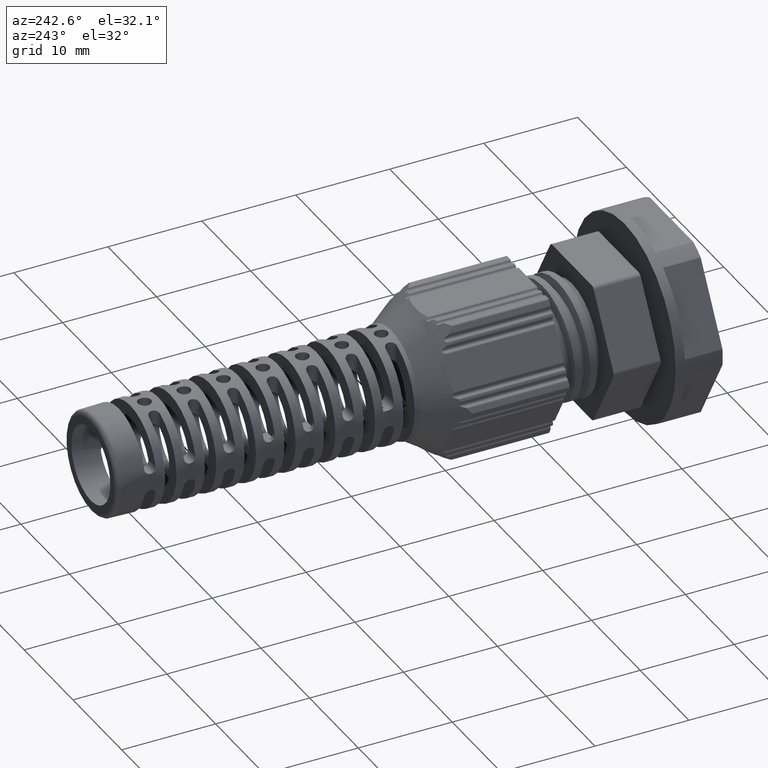
[diagram: clean part render]
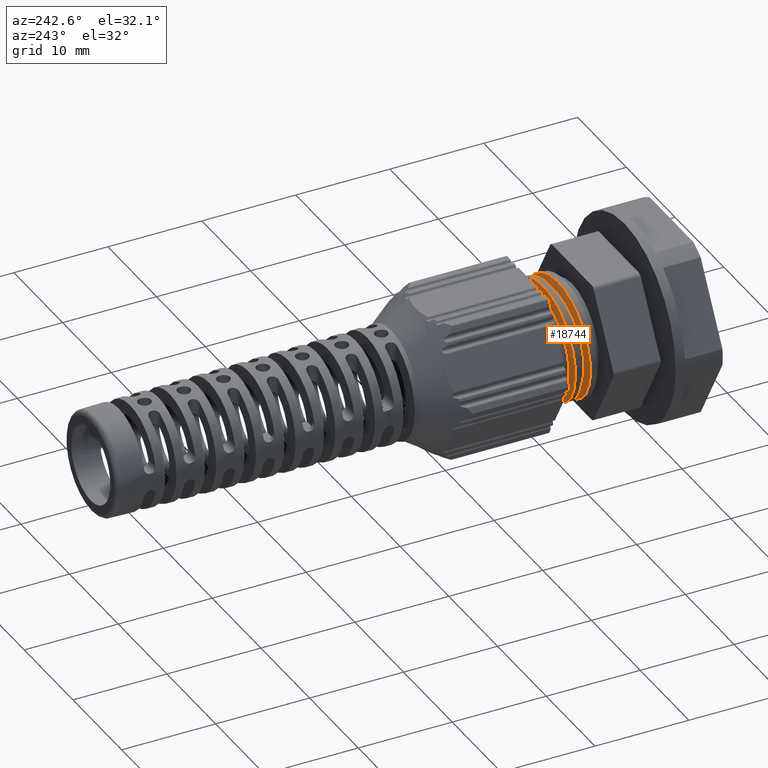
[diagram: same view with one face highlighted and labeled with its STEP entity id]
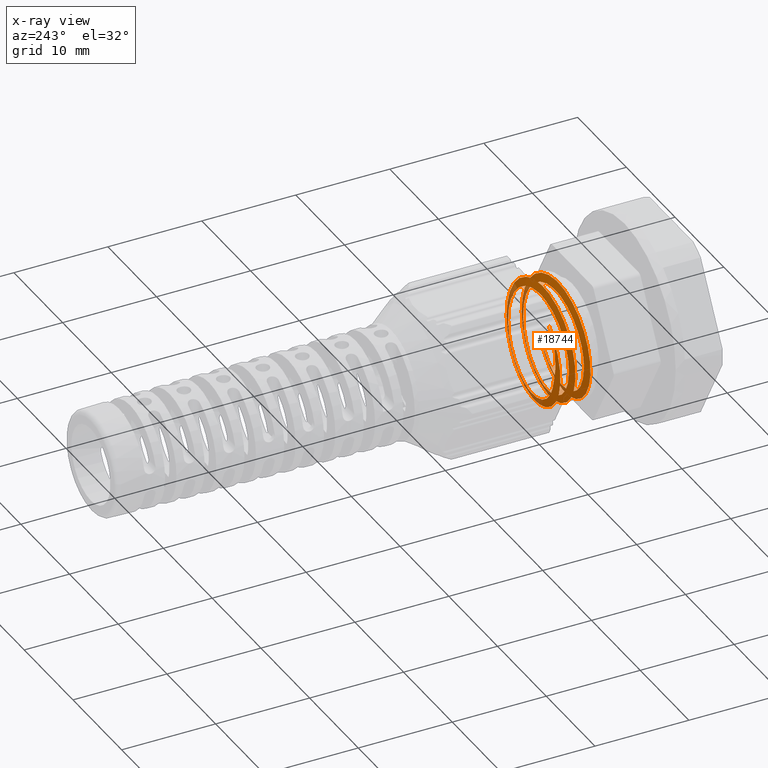
[diagram: x-ray of the same camera — body ghosted, the highlighted face saturated]
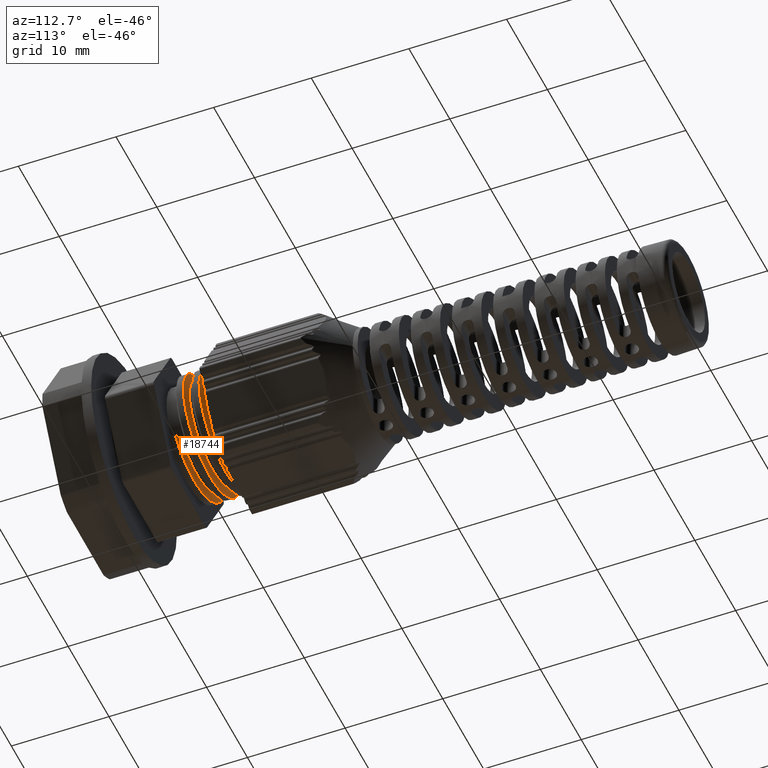
[diagram: same view with one face highlighted and labeled with its STEP entity id]
A machine part, auxiliary view. The second image highlights one B-rep face of the part: STEP entity #18744.
The next image is the same camera in x-ray: the body ghosted, the highlighted face saturated — about 16% of this face is hidden behind the body in this view.
A second angle (auxiliary view) of the same face is appended — the face is thin or edge-on in the first view.
In plain terms, the highlighted face is a freeform B-spline surface patch.
Its self-contained STEP definition (entity closure, byte-faithful):
#1087 = VERTEX_POINT ( 'NONE', #8345 ) ;
#1175 = VERTEX_POINT ( 'NONE', #8389 ) ;
#1208 = VERTEX_POINT ( 'NONE', #8470 ) ;
#2278 = EDGE_LOOP ( 'NONE', ( #3800, #2853, #3793, #3811, #3824, #3827, #3840, #3813, #3806 ) ) ;
#2853 = ORIENTED_EDGE ( 'NONE', *, *, #18505, .F. ) ;
#3793 = ORIENTED_EDGE ( 'NONE', *, *, #18596, .F. ) ;
#3800 = ORIENTED_EDGE ( 'NONE', *, *, #17540, .F. ) ;
#3806 = ORIENTED_EDGE ( 'NONE', *, *, #17566, .F. ) ;
#3811 = ORIENTED_EDGE ( 'NONE', *, *, #18636, .T. ) ;
#3813 = ORIENTED_EDGE ( 'NONE', *, *, #17570, .F. ) ;
#3824 = ORIENTED_EDGE ( 'NONE', *, *, #18583, .F. ) ;
#3827 = ORIENTED_EDGE ( 'NONE', *, *, #17545, .F. ) ;
#3840 = ORIENTED_EDGE ( 'NONE', *, *, #17569, .F. ) ;
#8345 = CARTESIAN_POINT ( 'NONE',  ( 4.953731957466974500, -2.805087850242340900, -3.853731957467014800 ) ) ;
#8389 = CARTESIAN_POINT ( 'NONE',  ( -4.298961618833343900, 1.233406263480285400, 4.572705906378621100 ) ) ;
#8470 = CARTESIAN_POINT ( 'NONE',  ( -5.313255970833022700, 1.233406263480260300, -1.213182174454109800 ) ) ;
#10132 = CARTESIAN_POINT ( 'NONE',  ( 3.853731957466394900, -2.510343738567963900, -3.853731957466975300 ) ) ;
#10137 = CARTESIAN_POINT ( 'NONE',  ( 2.257463914930413200, -2.410343738567372300, -5.449999999999826100 ) ) ;
#10139 = CARTESIAN_POINT ( 'NONE',  ( -1.425135576621622000E-012, -2.310343738568046300, -5.450000000000657400 ) ) ;
#10714 = VECTOR ( 'NONE', #12631, 1000.000000000000100 ) ;
#10754 = B_SPLINE_CURVE_WITH_KNOTS ( 'NONE', 3,
 ( #13798, #13815, #13802, #13807, #13809, #13811, #13812, #13813, #13816, #13862, #13878, #13879, #13881, #13850 ),
 .UNSPECIFIED., .F., .F.,
 ( 4, 2, 2, 2, 2, 2, 4 ),
 ( 2.679010695831683200E-017, 0.001529341802831789600, 0.002294012704247671700, 0.003058683605663553600, 0.003823354507079435500, 0.004588025408495317300, 0.006117367211327082000 ),
 .UNSPECIFIED. ) ;
#10783 = CARTESIAN_POINT ( 'NONE',  ( 3.853731957461836700, 0.6896562614332685200, -3.853731957467014800 ) ) ;
#10784 = CARTESIAN_POINT ( 'NONE',  ( 5.449999999998323300, 0.3896562614332685900, 2.257463914928381100 ) ) ;
#10790 = CARTESIAN_POINT ( 'NONE',  ( 2.257463914935160500, 0.1896562614332345000, 5.449999999995832800 ) ) ;
#10796 = CARTESIAN_POINT ( 'NONE',  ( 5.449999999996805400, 0.4896562614332684600, -3.660971170953911600E-012 ) ) ;
#10798 = CARTESIAN_POINT ( 'NONE',  ( 3.853731957467013900, 0.2896562614332683400, 3.853731957461836700 ) ) ;
#10802 = CARTESIAN_POINT ( 'NONE',  ( 7.724231316508561900E-013, 0.08965626143192478900, 5.450000000000661000 ) ) ;
#10806 = CARTESIAN_POINT ( 'NONE',  ( 1.438916973316065800E-012, 0.8896562614318267400, -5.450000000000657400 ) ) ;
#10817 = CARTESIAN_POINT ( 'NONE',  ( 5.449999999995290200, 0.5896562614332687700, -2.257463914935704100 ) ) ;
#10826 = CARTESIAN_POINT ( 'NONE',  ( 2.257463914931190800, 0.7896562614330925300, -5.449999999995514900 ) ) ;
#10861 = CARTESIAN_POINT ( 'NONE',  ( -1.425135576621622000E-012, -2.310343738568046300, -5.450000000000657400 ) ) ;
#10862 = CARTESIAN_POINT ( 'NONE',  ( -2.257463914935441200, -2.210343738566733100, -5.449999999995519300 ) ) ;
#10864 = CARTESIAN_POINT ( 'NONE',  ( -3.853731957467014400, -2.110343738566714300, -3.853731957461774500 ) ) ;
#10865 = CARTESIAN_POINT ( 'NONE',  ( -5.449999999998296700, -2.010343738566715100, -2.257463914928321100 ) ) ;
#10866 = CARTESIAN_POINT ( 'NONE',  ( -5.449999999996761000, -1.910343738566715500, 3.705879626157979100E-012 ) ) ;
#10868 = CARTESIAN_POINT ( 'NONE',  ( -5.449999999995227100, -1.810343738566714700, 2.257463914935733400 ) ) ;
#10869 = CARTESIAN_POINT ( 'NONE',  ( -3.853731957461774500, -1.710343738566715100, 3.853731957467014400 ) ) ;
#10870 = CARTESIAN_POINT ( 'NONE',  ( -2.257463914930926600, -1.610343738566878000, 5.449999999995690700 ) ) ;
#10875 = CARTESIAN_POINT ( 'NONE',  ( -8.975216488609491100E-013, -1.510343738568149500, 5.450000000000660100 ) ) ;
#10881 = CARTESIAN_POINT ( 'NONE',  ( -2.257463914933870000, -0.6103437385668276600, -5.449999999997081600 ) ) ;
#10885 = CARTESIAN_POINT ( 'NONE',  ( -5.449999999998290400, -0.4103437385667104700, -2.257463914928304700 ) ) ;
#10889 = CARTESIAN_POINT ( 'NONE',  ( 7.387071818202907300E-013, -0.7103437385681423700, -5.450000000000655700 ) ) ;
#10894 = CARTESIAN_POINT ( 'NONE',  ( 3.853731957461858900, -0.9103437385667374500, -3.853731957467014800 ) ) ;
#10895 = CARTESIAN_POINT ( 'NONE',  ( -5.449999999995212000, -0.2103437385667107400, 2.257463914935739600 ) ) ;
#10896 = CARTESIAN_POINT ( 'NONE',  ( 5.449999999996821400, -1.110343738566737600, -3.645254545442486700E-012 ) ) ;
#10900 = CARTESIAN_POINT ( 'NONE',  ( 7.724231316508561900E-013, 0.08965626143192478900, 5.450000000000661000 ) ) ;
#10901 = CARTESIAN_POINT ( 'NONE',  ( -2.257463914928872200, -0.01034373856674608700, 5.449999999997723800 ) ) ;
#10902 = CARTESIAN_POINT ( 'NONE',  ( 5.449999999995312400, -1.010343738566737800, -2.257463914935694300 ) ) ;
#10903 = CARTESIAN_POINT ( 'NONE',  ( 5.449999999998333100, -1.210343738566737500, 2.257463914928403300 ) ) ;
#10904 = CARTESIAN_POINT ( 'NONE',  ( -5.449999999996750300, -0.3103437385667105500, 3.717105787237567800E-012 ) ) ;
#10905 = CARTESIAN_POINT ( 'NONE',  ( -3.853731957467014400, -0.5103437385667106700, -3.853731957461758600 ) ) ;
#10909 = CARTESIAN_POINT ( 'NONE',  ( -3.853731957461758600, -0.1103437385667104300, 3.853731957467014400 ) ) ;
#10911 = CARTESIAN_POINT ( 'NONE',  ( -8.975216488609491100E-013, -1.510343738568149500, 5.450000000000660100 ) ) ;
#10912 = CARTESIAN_POINT ( 'NONE',  ( 2.257463914930244000, -0.8103437385668528200, -5.449999999996493600 ) ) ;
#10913 = CARTESIAN_POINT ( 'NONE',  ( 7.387071818202907300E-013, -0.7103437385681423700, -5.450000000000655700 ) ) ;
#10919 = CARTESIAN_POINT ( 'NONE',  ( 3.853731957467013900, -1.310343738566737600, 3.853731957461858900 ) ) ;
#10920 = CARTESIAN_POINT ( 'NONE',  ( 2.257463914933115500, -1.410343738566899100, 5.449999999997893400 ) ) ;
#12631 = DIRECTION ( 'NONE',  ( -0.9659258262890689800, 0.2588190451025184100, 0.0000000000000000000 ) ) ;
#12639 = LINE ( 'NONE', #12655, #10714 ) ;
#12655 = CARTESIAN_POINT ( 'NONE',  ( 4.403731957466974700, -2.657715794405224300, -3.853731957467014800 ) ) ;
#12899 = CARTESIAN_POINT ( 'NONE',  ( -4.963798989696874400, 1.159197654398043100, -2.743664925231064100 ) ) ;
#12904 = CARTESIAN_POINT ( 'NONE',  ( -2.257463914932845500, 0.9896562614329802400, -5.449999999998413900 ) ) ;
#12916 = CARTESIAN_POINT ( 'NONE',  ( 1.438916973316065800E-012, 0.8896562614318267400, -5.450000000000657400 ) ) ;
#12933 = CARTESIAN_POINT ( 'NONE',  ( -5.313255970833022700, 1.233406263480260300, -1.213182174454109800 ) ) ;
#12936 = CARTESIAN_POINT ( 'NONE',  ( -3.853731957467014400, 1.089656261433148200, -3.853731957462286600 ) ) ;
#13504 = CARTESIAN_POINT ( 'NONE',  ( 3.853731957466975300, 7.089656261431894500, -3.853731957467014800 ) ) ;
#13505 = CARTESIAN_POINT ( 'NONE',  ( -5.450000000000438900, 6.089656261431893600, 2.818925648462311500E-014 ) ) ;
#13506 = CARTESIAN_POINT ( 'NONE',  ( 5.450000000000429200, 6.989656261431894000, -2.257463914933574700 ) ) ;
#13512 = CARTESIAN_POINT ( 'NONE',  ( -2.818925648462311500E-014, 5.689656261431892400, -5.450000000000438900 ) ) ;
#13524 = CARTESIAN_POINT ( 'NONE',  ( -3.853731957467014400, 5.889656261431892600, -3.853731957466975300 ) ) ;
#13527 = CARTESIAN_POINT ( 'NONE',  ( -2.257463914933523200, 6.389656261431893500, 5.450000000000451400 ) ) ;
#13529 = CARTESIAN_POINT ( 'NONE',  ( -5.450000000000451400, 5.989656261431892200, -2.257463914933521400 ) ) ;
#13530 = CARTESIAN_POINT ( 'NONE',  ( -5.450000000000428300, 6.189656261431894200, 2.257463914933578700 ) ) ;
#13531 = CARTESIAN_POINT ( 'NONE',  ( 2.257463914933575100, 6.589656261431891900, 5.450000000000429200 ) ) ;
#13532 = CARTESIAN_POINT ( 'NONE',  ( -3.853731957466975300, 6.289656261431892000, 3.853731957467014400 ) ) ;
#13533 = CARTESIAN_POINT ( 'NONE',  ( 2.257463914933521400, 5.589656261431891000, -5.450000000000451400 ) ) ;
#13534 = CARTESIAN_POINT ( 'NONE',  ( -2.257463914933578700, 5.789656261431894700, -5.450000000000428300 ) ) ;
#13536 = CARTESIAN_POINT ( 'NONE',  ( 5.450000000000438900, 6.889656261431891700, -2.732189474663471200E-014 ) ) ;
#13538 = CARTESIAN_POINT ( 'NONE',  ( 5.450000000000452300, 6.789656261431892000, 2.257463914933520100 ) ) ;
#13542 = CARTESIAN_POINT ( 'NONE',  ( 3.853731957467013900, 6.689656261431891500, 3.853731957466975300 ) ) ;
#13557 = CARTESIAN_POINT ( 'NONE',  ( 2.775557561562891400E-014, 6.489656261431892200, 5.450000000000439800 ) ) ;
#13559 = CARTESIAN_POINT ( 'NONE',  ( -6.227817459305642300, -2.205087850242340800, -0.7778174593051746500 ) ) ;
#13560 = CARTESIAN_POINT ( 'NONE',  ( 3.853731957467013900, -0.005087850242340482400, 4.953731957466975400 ) ) ;
#13563 = CARTESIAN_POINT ( 'NONE',  ( -4.654280466864952900, 1.213671623895020900, 4.238658162786539000 ) ) ;
#13564 = CARTESIAN_POINT ( 'NONE',  ( -6.227817459305642300, 0.9949121497576595100, -0.7778174593051746500 ) ) ;
#13566 = CARTESIAN_POINT ( 'NONE',  ( -6.550000000000428800, 1.094912149757660400, 1.801828996323173700 ) ) ;
#13567 = CARTESIAN_POINT ( 'NONE',  ( 3.357463914933523700, 0.4949121497576595100, -5.905634918610855000 ) ) ;
#13568 = CARTESIAN_POINT ( 'NONE',  ( 5.905634918610857700, 0.09491214975765981100, 3.357463914933520100 ) ) ;
#13569 = CARTESIAN_POINT ( 'NONE',  ( 0.7778174593051746500, -1.005087850242341000, -6.227817459305642300 ) ) ;
#13570 = CARTESIAN_POINT ( 'NONE',  ( 4.953731957466974500, -1.205087850242340300, -3.853731957467014800 ) ) ;
#13572 = CARTESIAN_POINT ( 'NONE',  ( 1.801828996323170000, -1.705087850242340300, 6.550000000000429700 ) ) ;
#13573 = CARTESIAN_POINT ( 'NONE',  ( -5.905634918610855000, -0.7050878502423401100, -3.357463914933523700 ) ) ;
#13574 = CARTESIAN_POINT ( 'NONE',  ( -4.953731957466975400, -2.005087850242340600, 3.853731957467014400 ) ) ;
#13575 = CARTESIAN_POINT ( 'NONE',  ( -3.357463914933524100, -0.3050878502423404200, 5.905634918610855000 ) ) ;
#13578 = CARTESIAN_POINT ( 'NONE',  ( 6.227817459305642300, -1.405087850242340500, 0.7778174593051755400 ) ) ;
#13579 = CARTESIAN_POINT ( 'NONE',  ( -0.7778174593051751000, -1.805087850242340400, 6.227817459305642300 ) ) ;
#13580 = CARTESIAN_POINT ( 'NONE',  ( -3.357463914933524100, -1.905087850242340300, 5.905634918610855000 ) ) ;
#13582 = CARTESIAN_POINT ( 'NONE',  ( -3.853731957467014400, 0.7949121497576598900, -4.953731957466974500 ) ) ;
#13583 = CARTESIAN_POINT ( 'NONE',  ( 3.357463914933523700, -1.105087850242340200, -5.905634918610855000 ) ) ;
#13584 = CARTESIAN_POINT ( 'NONE',  ( 3.853731957467013900, -1.605087850242340200, 4.953731957466975400 ) ) ;
#13585 = CARTESIAN_POINT ( 'NONE',  ( -6.550000000000428800, -2.105087850242340700, 1.801828996323173700 ) ) ;
#13586 = CARTESIAN_POINT ( 'NONE',  ( -4.953731957466975400, 1.194912149757659600, 3.853731957467014400 ) ) ;
#13587 = CARTESIAN_POINT ( 'NONE',  ( -5.905634918610855000, -2.305087850242340400, -3.357463914933523700 ) ) ;
#13588 = CARTESIAN_POINT ( 'NONE',  ( 6.227817459305642300, 0.1949121497576596100, 0.7778174593051755400 ) ) ;
#13589 = CARTESIAN_POINT ( 'NONE',  ( -1.801828996323173700, -2.505087850242340600, -6.550000000000428800 ) ) ;
#13590 = CARTESIAN_POINT ( 'NONE',  ( 6.550000000000429700, -1.305087850242340400, -1.801828996323169500 ) ) ;
#13591 = CARTESIAN_POINT ( 'NONE',  ( 4.953731957466974500, 0.3949121497576597000, -3.853731957467014800 ) ) ;
#13592 = CARTESIAN_POINT ( 'NONE',  ( 0.7778174593051746500, -2.605087850242340200, -6.227817459305642300 ) ) ;
#13594 = CARTESIAN_POINT ( 'NONE',  ( -0.7778174593051751000, -0.2050878502423401400, 6.227817459305642300 ) ) ;
#13596 = CARTESIAN_POINT ( 'NONE',  ( 4.953731957466974500, -2.805087850242340900, -3.853731957467014800 ) ) ;
#13597 = CARTESIAN_POINT ( 'NONE',  ( 6.550000000000429700, 0.2949121497576598900, -1.801828996323169500 ) ) ;
#13599 = CARTESIAN_POINT ( 'NONE',  ( -3.853731957467014400, -0.8050878502423404200, -4.953731957466974500 ) ) ;
#13600 = CARTESIAN_POINT ( 'NONE',  ( -4.953731957466975400, -0.4050878502423402300, 3.853731957467014400 ) ) ;
#13601 = CARTESIAN_POINT ( 'NONE',  ( -1.801828996323173700, -0.9050878502423406200, -6.550000000000428800 ) ) ;
#13602 = CARTESIAN_POINT ( 'NONE',  ( 5.905634918610857700, -1.505087850242341000, 3.357463914933520100 ) ) ;
#13606 = CARTESIAN_POINT ( 'NONE',  ( -1.801828996323173700, 0.6949121497576595800, -6.550000000000428800 ) ) ;
#13609 = CARTESIAN_POINT ( 'NONE',  ( 0.7778174593051746500, 0.5949121497576598200, -6.227817459305642300 ) ) ;
#13610 = CARTESIAN_POINT ( 'NONE',  ( -4.298961618833343900, 1.233406263480285400, 4.572705906378621100 ) ) ;
#13611 = CARTESIAN_POINT ( 'NONE',  ( -6.227817459305642300, -0.6050878502423403500, -0.7778174593051746500 ) ) ;
#13612 = CARTESIAN_POINT ( 'NONE',  ( -3.853731957467014400, -2.405087850242340100, -4.953731957466974500 ) ) ;
#13613 = CARTESIAN_POINT ( 'NONE',  ( 3.357463914933523700, -2.705087850242341700, -5.905634918610855000 ) ) ;
#13615 = CARTESIAN_POINT ( 'NONE',  ( -5.905634918610855000, 0.8949121497576599800, -3.357463914933523700 ) ) ;
#13616 = CARTESIAN_POINT ( 'NONE',  ( 1.801828996323170000, -0.1050878502423403100, 6.550000000000429700 ) ) ;
#13617 = CARTESIAN_POINT ( 'NONE',  ( -6.550000000000428800, -0.5050878502423404900, 1.801828996323173700 ) ) ;
#13798 = CARTESIAN_POINT ( 'NONE',  ( -4.298961618833343900, 1.233406263480285400, 4.572705906378621100 ) ) ;
#13802 = CARTESIAN_POINT ( 'NONE',  ( -4.902448832841013600, 1.233406263480278000, 3.742811049815240500 ) ) ;
#13807 = CARTESIAN_POINT ( 'NONE',  ( -5.227903735035990700, 1.233406263480278500, 3.048321438636207000 ) ) ;
#13809 = CARTESIAN_POINT ( 'NONE',  ( -5.322273652840412900, 1.233406263480284500, 2.806706792688418600 ) ) ;
#13811 = CARTESIAN_POINT ( 'NONE',  ( -5.477427357190907600, 1.233406263480284700, 2.315125921697029000 ) ) ;
#13812 = CARTESIAN_POINT ( 'NONE',  ( -5.538028964567683200, 1.233406263480283600, 2.066699245235488600 ) ) ;
#13813 = CARTESIAN_POINT ( 'NONE',  ( -5.626634726630544300, 1.233406263480283400, 1.564783535852416300 ) ) ;
#13815 = CARTESIAN_POINT ( 'NONE',  ( -4.626447938315648900, 1.233406263480288000, 4.172348211140873200 ) ) ;
#13816 = CARTESIAN_POINT ( 'NONE',  ( -5.654634513987257800, 1.233406263480296900, 1.311293824688529500 ) ) ;
#13850 = CARTESIAN_POINT ( 'NONE',  ( -5.313255970833022700, 1.233406263480260300, -1.213182174454109800 ) ) ;
#13862 = CARTESIAN_POINT ( 'NONE',  ( -5.677739002444698500, 1.233406263480297100, 0.7992058236629098200 ) ) ;
#13878 = CARTESIAN_POINT ( 'NONE',  ( -5.672551639939786000, 1.233406263480284300, 0.5388844732748512300 ) ) ;
#13879 = CARTESIAN_POINT ( 'NONE',  ( -5.607379942381604600, 1.233406263480284300, -0.2292014676984520700 ) ) ;
#13881 = CARTESIAN_POINT ( 'NONE',  ( -5.498980256559145900, 1.233406263480243800, -0.7286795415922584500 ) ) ;
#14547 = CARTESIAN_POINT ( 'NONE',  ( 3.357463914933523700, -2.705087850242341700, -5.905634918610855000 ) ) ;
#14548 = CARTESIAN_POINT ( 'NONE',  ( 1.801828996323170000, -1.705087850242340300, 6.550000000000429700 ) ) ;
#14549 = CARTESIAN_POINT ( 'NONE',  ( 3.357463914933523700, 0.4949121497576595100, -5.905634918610855000 ) ) ;
#14550 = CARTESIAN_POINT ( 'NONE',  ( -6.227817459305642300, 0.9949121497576595100, -0.7778174593051746500 ) ) ;
#14553 = CARTESIAN_POINT ( 'NONE',  ( 4.953731957466974500, -2.805087850242340400, -3.853731957467014800 ) ) ;
#14554 = CARTESIAN_POINT ( 'NONE',  ( -5.905634918610855000, -2.305087850242340400, -3.357463914933523700 ) ) ;
#14556 = CARTESIAN_POINT ( 'NONE',  ( 4.953731957466974500, 0.3949121497576597000, -3.853731957467014800 ) ) ;
#14557 = CARTESIAN_POINT ( 'NONE',  ( -4.953731957466975400, 1.194912149757659600, 3.853731957467014400 ) ) ;
#14558 = CARTESIAN_POINT ( 'NONE',  ( -0.7778174593051751000, 1.394912149757660200, 6.227817459305642300 ) ) ;
#14559 = CARTESIAN_POINT ( 'NONE',  ( -0.7778174593051751000, -1.805087850242340400, 6.227817459305642300 ) ) ;
#14560 = CARTESIAN_POINT ( 'NONE',  ( 6.550000000000429700, -1.305087850242340400, -1.801828996323169500 ) ) ;
#14561 = CARTESIAN_POINT ( 'NONE',  ( 0.7778174593051746500, -1.005087850242341000, -6.227817459305642300 ) ) ;
#14562 = CARTESIAN_POINT ( 'NONE',  ( -3.853731957467014400, -0.8050878502423404200, -4.953731957466974500 ) ) ;
#14563 = CARTESIAN_POINT ( 'NONE',  ( -6.227817459305642300, -0.6050878502423403500, -0.7778174593051746500 ) ) ;
#14564 = CARTESIAN_POINT ( 'NONE',  ( 1.801828996323170000, -0.1050878502423403100, 6.550000000000429700 ) ) ;
#14565 = CARTESIAN_POINT ( 'NONE',  ( 0.7778174593051746500, 0.5949121497576598200, -6.227817459305642300 ) ) ;
#14566 = CARTESIAN_POINT ( 'NONE',  ( -1.801828996323173700, 0.6949121497576596900, -6.550000000000428800 ) ) ;
#14567 = CARTESIAN_POINT ( 'NONE',  ( 3.853731957467013900, 1.594912149757659700, 4.953731957466975400 ) ) ;
#14568 = CARTESIAN_POINT ( 'NONE',  ( -6.227817459305642300, -2.205087850242340800, -0.7778174593051746500 ) ) ;
#14569 = CARTESIAN_POINT ( 'NONE',  ( 3.357463914933523700, 2.094912149757659500, -5.905634918610855000 ) ) ;
#14570 = CARTESIAN_POINT ( 'NONE',  ( 0.7778174593051746500, 2.194912149757659600, -6.227817459305642300 ) ) ;
#14571 = CARTESIAN_POINT ( 'NONE',  ( -1.801828996323173700, 2.294912149757660100, -6.550000000000428800 ) ) ;
#14572 = CARTESIAN_POINT ( 'NONE',  ( -1.801828996323173700, -0.9050878502423405100, -6.550000000000428800 ) ) ;
#14573 = CARTESIAN_POINT ( 'NONE',  ( -4.953731957466975400, -2.005087850242340600, 3.853731957467014400 ) ) ;
#14574 = CARTESIAN_POINT ( 'NONE',  ( -6.550000000000428800, -0.5050878502423404900, 1.801828996323173700 ) ) ;
#14575 = CARTESIAN_POINT ( 'NONE',  ( -4.953731957466975400, -0.4050878502423402300, 3.853731957467014400 ) ) ;
#14576 = CARTESIAN_POINT ( 'NONE',  ( -3.853731957467014400, 2.394912149757660200, -4.953731957466974500 ) ) ;
#14577 = CARTESIAN_POINT ( 'NONE',  ( 3.853731957467013900, -1.605087850242340200, 4.953731957466975400 ) ) ;
#14578 = CARTESIAN_POINT ( 'NONE',  ( 1.801828996323170000, 1.494912149757659600, 6.550000000000429700 ) ) ;
#14579 = FACE_OUTER_BOUND ( 'NONE', #2278, .T. ) ;
#14581 = CARTESIAN_POINT ( 'NONE',  ( -3.357463914933524100, -1.905087850242340300, 5.905634918610855000 ) ) ;
#14582 = CARTESIAN_POINT ( 'NONE',  ( 5.905634918610857700, -1.505087850242341000, 3.357463914933520100 ) ) ;
#14583 = CARTESIAN_POINT ( 'NONE',  ( -0.7778174593051751000, -0.2050878502423401400, 6.227817459305642300 ) ) ;
#14584 = CARTESIAN_POINT ( 'NONE',  ( 0.7778174593051746500, -2.605087850242340200, -6.227817459305642300 ) ) ;
#14585 = CARTESIAN_POINT ( 'NONE',  ( -5.905634918610855000, -0.7050878502423402200, -3.357463914933523700 ) ) ;
#14586 = CARTESIAN_POINT ( 'NONE',  ( 5.905634918610857700, 0.09491214975765981100, 3.357463914933520100 ) ) ;
#14587 = CARTESIAN_POINT ( 'NONE',  ( -6.550000000000428800, -2.105087850242340700, 1.801828996323173700 ) ) ;
#14588 = CARTESIAN_POINT ( 'NONE',  ( 6.227817459305642300, -1.405087850242340500, 0.7778174593051755400 ) ) ;
#14590 = CARTESIAN_POINT ( 'NONE',  ( 3.853731957467013900, -0.005087850242340482400, 4.953731957466975400 ) ) ;
#14591 = CARTESIAN_POINT ( 'NONE',  ( -3.853731957467014400, 0.7949121497576598900, -4.953731957466974500 ) ) ;
#14592 = CARTESIAN_POINT ( 'NONE',  ( -6.550000000000428800, 1.094912149757660200, 1.801828996323173700 ) ) ;
#14593 = CARTESIAN_POINT ( 'NONE',  ( -3.357463914933524100, -0.3050878502423404200, 5.905634918610855000 ) ) ;
#14595 = CARTESIAN_POINT ( 'NONE',  ( 6.550000000000429700, 0.2949121497576598900, -1.801828996323169500 ) ) ;
#14596 = CARTESIAN_POINT ( 'NONE',  ( -1.801828996323173700, -2.505087850242340600, -6.550000000000428800 ) ) ;
#14597 = CARTESIAN_POINT ( 'NONE',  ( -5.905634918610855000, 0.8949121497576598700, -3.357463914933523700 ) ) ;
#14598 = CARTESIAN_POINT ( 'NONE',  ( 5.905634918610857700, 1.694912149757659800, 3.357463914933520100 ) ) ;
#14599 = CARTESIAN_POINT ( 'NONE',  ( -3.357463914933524100, 1.294912149757660100, 5.905634918610855000 ) ) ;
#14600 = CARTESIAN_POINT ( 'NONE',  ( 6.227817459305642300, 1.794912149757659400, 0.7778174593051755400 ) ) ;
#14601 = CARTESIAN_POINT ( 'NONE',  ( -3.853731957467014400, -2.405087850242340100, -4.953731957466974500 ) ) ;
#14602 = CARTESIAN_POINT ( 'NONE',  ( 6.550000000000429700, 1.894912149757659800, -1.801828996323169500 ) ) ;
#14603 = CARTESIAN_POINT ( 'NONE',  ( 4.953731957466974500, 1.994912149757660100, -3.853731957467014800 ) ) ;
#14604 = CARTESIAN_POINT ( 'NONE',  ( 4.953731957466974500, -1.205087850242340300, -3.853731957467014800 ) ) ;
#14605 = CARTESIAN_POINT ( 'NONE',  ( 3.357463914933523700, -1.105087850242340200, -5.905634918610855000 ) ) ;
#14606 = CARTESIAN_POINT ( 'NONE',  ( 6.227817459305642300, 0.1949121497576596100, 0.7778174593051755400 ) ) ;
#14607 = CARTESIAN_POINT ( 'NONE',  ( 5.905634918610857700, 4.894912149757662000, 3.357463914933520100 ) ) ;
#14608 = CARTESIAN_POINT ( 'NONE',  ( -6.550000000000428800, 2.694912149757660000, 1.801828996323173700 ) ) ;
#14609 = CARTESIAN_POINT ( 'NONE',  ( -4.953731957466975400, 5.994912149757659800, 3.853731957467014400 ) ) ;
#14610 = CARTESIAN_POINT ( 'NONE',  ( 6.550000000000429700, 6.694912149757659100, -1.801828996323169500 ) ) ;
#14611 = CARTESIAN_POINT ( 'NONE',  ( 6.227817459305642300, 6.594912149757659500, 0.7778174593051755400 ) ) ;
#14612 = CARTESIAN_POINT ( 'NONE',  ( -6.227817459305642300, 2.594912149757659900, -0.7778174593051746500 ) ) ;
#14613 = CARTESIAN_POINT ( 'NONE',  ( 4.953731957466974500, 3.594912149757659900, -3.853731957467014800 ) ) ;
#14614 = CARTESIAN_POINT ( 'NONE',  ( 6.550000000000429700, 5.094912149757660400, -1.801828996323169500 ) ) ;
#14615 = CARTESIAN_POINT ( 'NONE',  ( -3.357463914933524100, 4.494912149757659000, 5.905634918610855000 ) ) ;
#14616 = CARTESIAN_POINT ( 'NONE',  ( 3.853731957467013900, 4.794912149757659700, 4.953731957466975400 ) ) ;
#14617 = CARTESIAN_POINT ( 'NONE',  ( 4.953731957466974500, 6.794912149757660600, -3.853731957467014800 ) ) ;
#14618 = CARTESIAN_POINT ( 'NONE',  ( -0.7778174593051751000, 4.594912149757659500, 6.227817459305642300 ) ) ;
#14619 = CARTESIAN_POINT ( 'NONE',  ( -6.227817459305642300, 4.194912149757660000, -0.7778174593051746500 ) ) ;
#14620 = CARTESIAN_POINT ( 'NONE',  ( -3.853731957466975300, -1.710343738568108600, 3.853731957467014400 ) ) ;
#14621 = CARTESIAN_POINT ( 'NONE',  ( -3.853731957467014400, 3.994912149757659800, -4.953731957466974500 ) ) ;
#14622 = CARTESIAN_POINT ( 'NONE',  ( -6.227817459305642300, 5.794912149757659700, -0.7778174593051746500 ) ) ;
#14623 = CARTESIAN_POINT ( 'NONE',  ( -2.257463914933523200, -1.610343738568108300, 5.450000000000451400 ) ) ;
#14624 = CARTESIAN_POINT ( 'NONE',  ( 2.775557561562891400E-014, -1.510343738568108400, 5.450000000000439800 ) ) ;
#14625 = CARTESIAN_POINT ( 'NONE',  ( 2.257463914933575100, -1.410343738568108400, 5.450000000000429200 ) ) ;
#14626 = CARTESIAN_POINT ( 'NONE',  ( -0.7778174593051751000, 2.994912149757659800, 6.227817459305642300 ) ) ;
#14627 = CARTESIAN_POINT ( 'NONE',  ( 3.357463914933523700, 5.294912149757658800, -5.905634918610855000 ) ) ;
#14628 = CARTESIAN_POINT ( 'NONE',  ( 3.853731957467013900, -1.310343738568108500, 3.853731957466975300 ) ) ;
#14629 = CARTESIAN_POINT ( 'NONE',  ( -5.450000000000451400, -2.010343738568108700, -2.257463914933521400 ) ) ;
#14630 = CARTESIAN_POINT ( 'NONE',  ( 5.450000000000452300, -1.210343738568108400, 2.257463914933520100 ) ) ;
#14631 = CARTESIAN_POINT ( 'NONE',  ( 5.450000000000438900, -1.110343738568108500, -2.732189474663471200E-014 ) ) ;
#14632 = CARTESIAN_POINT ( 'NONE',  ( 5.450000000000429200, -1.010343738568108700, -2.257463914933574700 ) ) ;
#14633 = CARTESIAN_POINT ( 'NONE',  ( -5.905634918610855000, 4.094912149757660400, -3.357463914933523700 ) ) ;
#14634 = CARTESIAN_POINT ( 'NONE',  ( 3.853731957466975300, -0.9103437385681084600, -3.853731957467014800 ) ) ;
#14635 = CARTESIAN_POINT ( 'NONE',  ( 5.905634918610857700, 6.494912149757660700, 3.357463914933520100 ) ) ;
#14636 = CARTESIAN_POINT ( 'NONE',  ( 2.257463914933521400, -0.8103437385681083700, -5.450000000000451400 ) ) ;
#14637 = CARTESIAN_POINT ( 'NONE',  ( -2.818925648462311500E-014, -0.7103437385681084000, -5.450000000000438900 ) ) ;
#14638 = CARTESIAN_POINT ( 'NONE',  ( -2.257463914933578700, -0.6103437385681086400, -5.450000000000428300 ) ) ;
#14639 = CARTESIAN_POINT ( 'NONE',  ( 1.801828996323170000, 4.694912149757660000, 6.550000000000429700 ) ) ;
#14640 = CARTESIAN_POINT ( 'NONE',  ( 4.953731957466974500, 5.194912149757660000, -3.853731957467014800 ) ) ;
#14641 = CARTESIAN_POINT ( 'NONE',  ( -5.905634918610855000, 2.494912149757659400, -3.357463914933523700 ) ) ;
#14642 = CARTESIAN_POINT ( 'NONE',  ( 3.357463914933523700, 3.694912149757660500, -5.905634918610855000 ) ) ;
#14643 = CARTESIAN_POINT ( 'NONE',  ( 6.227817459305642300, 4.994912149757659800, 0.7778174593051755400 ) ) ;
#14644 = CARTESIAN_POINT ( 'NONE',  ( -5.905634918610855000, 5.694912149757660000, -3.357463914933523700 ) ) ;
#14645 = CARTESIAN_POINT ( 'NONE',  ( -4.953731957466975400, 4.394912149757660200, 3.853731957467014400 ) ) ;
#14646 = CARTESIAN_POINT ( 'NONE',  ( 6.227817459305642300, 3.394912149757660200, 0.7778174593051755400 ) ) ;
#14647 = CARTESIAN_POINT ( 'NONE',  ( -3.357463914933524100, 2.894912149757659800, 5.905634918610855000 ) ) ;
#14648 = CARTESIAN_POINT ( 'NONE',  ( 0.7778174593051746500, 5.394912149757660200, -6.227817459305642300 ) ) ;
#14649 = CARTESIAN_POINT ( 'NONE',  ( 6.550000000000429700, 3.494912149757659400, -1.801828996323169500 ) ) ;
#14650 = CARTESIAN_POINT ( 'NONE',  ( -6.550000000000428800, 5.894912149757661100, 1.801828996323173700 ) ) ;
#14651 = CARTESIAN_POINT ( 'NONE',  ( 1.801828996323170000, 3.094912149757659000, 6.550000000000429700 ) ) ;
#14652 = CARTESIAN_POINT ( 'NONE',  ( 2.257463914933521400, -2.410343738568109000, -5.450000000000451400 ) ) ;
#14653 = CARTESIAN_POINT ( 'NONE',  ( -2.257463914933578700, -2.210343738568108400, -5.450000000000428300 ) ) ;
#14654 = CARTESIAN_POINT ( 'NONE',  ( -5.450000000000438900, -1.910343738568109000, 2.818925648462311500E-014 ) ) ;
#14655 = CARTESIAN_POINT ( 'NONE',  ( -5.450000000000428300, -1.810343738568108500, 2.257463914933578700 ) ) ;
#14656 = CARTESIAN_POINT ( 'NONE',  ( 5.905634918610857700, 3.294912149757660100, 3.357463914933520100 ) ) ;
#14657 = CARTESIAN_POINT ( 'NONE',  ( -6.550000000000428800, 4.294912149757659700, 1.801828996323173700 ) ) ;
#14658 = CARTESIAN_POINT ( 'NONE',  ( -3.357463914933524100, 6.094912149757659500, 5.905634918610855000 ) ) ;
#14659 = CARTESIAN_POINT ( 'NONE',  ( -1.801828996323173700, 5.494912149757659000, -6.550000000000428800 ) ) ;
#14660 = CARTESIAN_POINT ( 'NONE',  ( 0.7778174593051746500, 3.794912149757661000, -6.227817459305642300 ) ) ;
#14661 = CARTESIAN_POINT ( 'NONE',  ( -1.801828996323173700, 3.894912149757659800, -6.550000000000428800 ) ) ;
#14662 = CARTESIAN_POINT ( 'NONE',  ( -0.7778174593051751000, 6.194912149757663600, 6.227817459305642300 ) ) ;
#14663 = CARTESIAN_POINT ( 'NONE',  ( 3.853731957467013900, 6.394912149757659300, 4.953731957466975400 ) ) ;
#14664 = CARTESIAN_POINT ( 'NONE',  ( -3.853731957467014400, 5.594912149757660400, -4.953731957466974500 ) ) ;
#14665 = CARTESIAN_POINT ( 'NONE',  ( 3.853731957466975300, -2.510343738568108700, -3.853731957467014800 ) ) ;
#14666 = CARTESIAN_POINT ( 'NONE',  ( 1.801828996323170000, 6.294912149757659700, 6.550000000000429700 ) ) ;
#14667 = CARTESIAN_POINT ( 'NONE',  ( -2.818925648462311500E-014, -2.310343738568108500, -5.450000000000438900 ) ) ;
#14668 = CARTESIAN_POINT ( 'NONE',  ( -4.953731957466975400, 2.794912149757661000, 3.853731957467014400 ) ) ;
#14669 = CARTESIAN_POINT ( 'NONE',  ( 3.853731957467013900, 3.194912149757659600, 4.953731957466975400 ) ) ;
#14670 = CARTESIAN_POINT ( 'NONE',  ( -3.853731957467014400, -2.110343738568108300, -3.853731957466975300 ) ) ;
#14671 = CARTESIAN_POINT ( 'NONE',  ( -2.818925648462311500E-014, 0.8896562614318916900, -5.450000000000438900 ) ) ;
#14672 = CARTESIAN_POINT ( 'NONE',  ( -5.450000000000451400, 4.389656261431892600, -2.257463914933521400 ) ) ;
#14673 = CARTESIAN_POINT ( 'NONE',  ( -2.257463914933523200, 4.789656261431891200, 5.450000000000451400 ) ) ;
#14674 = CARTESIAN_POINT ( 'NONE',  ( 2.257463914933575100, 4.989656261431891300, 5.450000000000429200 ) ) ;
#14675 = CARTESIAN_POINT ( 'NONE',  ( 2.775557561562891400E-014, 0.08965626143189178700, 5.450000000000439800 ) ) ;
#14676 = CARTESIAN_POINT ( 'NONE',  ( 3.853731957467013900, 5.089656261431892800, 3.853731957466975300 ) ) ;
#14677 = CARTESIAN_POINT ( 'NONE',  ( 5.450000000000452300, 5.189656261431895100, 2.257463914933520100 ) ) ;
#14678 = CARTESIAN_POINT ( 'NONE',  ( -2.257463914933523200, 3.189656261431893300, 5.450000000000451400 ) ) ;
#14679 = CARTESIAN_POINT ( 'NONE',  ( 3.853731957466975300, 3.889656261431891700, -3.853731957467014800 ) ) ;
#14680 = CARTESIAN_POINT ( 'NONE',  ( 5.450000000000438900, 5.289656261431892000, -2.732189474663471200E-014 ) ) ;
#14681 = CARTESIAN_POINT ( 'NONE',  ( 5.450000000000429200, 5.389656261431892600, -2.257463914933574700 ) ) ;
#14682 = CARTESIAN_POINT ( 'NONE',  ( -2.257463914933578700, 4.189656261431891500, -5.450000000000428300 ) ) ;
#14683 = CARTESIAN_POINT ( 'NONE',  ( 3.853731957466975300, 5.489656261431891300, -3.853731957467014800 ) ) ;
#14684 = CARTESIAN_POINT ( 'NONE',  ( 3.853731957467013900, 1.889656261431891700, 3.853731957466975300 ) ) ;
#14685 = CARTESIAN_POINT ( 'NONE',  ( 2.257463914933575100, 3.389656261431891200, 5.450000000000429200 ) ) ;
#14686 = CARTESIAN_POINT ( 'NONE',  ( 2.775557561562891400E-014, 4.889656261431891700, 5.450000000000439800 ) ) ;
#14687 = CARTESIAN_POINT ( 'NONE',  ( 3.853731957466975300, 0.6896562614318916300, -3.853731957467014800 ) ) ;
#14688 = CARTESIAN_POINT ( 'NONE',  ( 2.775557561562891400E-014, 1.689656261431892400, 5.450000000000439800 ) ) ;
#14689 = CARTESIAN_POINT ( 'NONE',  ( -5.450000000000438900, 2.889656261431891700, 2.818925648462311500E-014 ) ) ;
#14690 = CARTESIAN_POINT ( 'NONE',  ( -3.853731957467014400, 2.689656261431892000, -3.853731957466975300 ) ) ;
#14691 = CARTESIAN_POINT ( 'NONE',  ( -5.450000000000428300, -0.2103437385681085600, 2.257463914933578700 ) ) ;
#14692 = CARTESIAN_POINT ( 'NONE',  ( 3.853731957467013900, 0.2896562614318914400, 3.853731957466975300 ) ) ;
#14693 = CARTESIAN_POINT ( 'NONE',  ( -2.257463914933578700, 0.9896562614318914500, -5.450000000000428300 ) ) ;
#14694 = CARTESIAN_POINT ( 'NONE',  ( 5.450000000000452300, 3.589656261431893200, 2.257463914933520100 ) ) ;
#14695 = CARTESIAN_POINT ( 'NONE',  ( -3.853731957467014400, -0.5103437385681084400, -3.853731957466975300 ) ) ;
#14696 = CARTESIAN_POINT ( 'NONE',  ( 2.257463914933521400, 3.989656261431892200, -5.450000000000451400 ) ) ;
#14697 = CARTESIAN_POINT ( 'NONE',  ( -2.818925648462311500E-014, 4.089656261431891900, -5.450000000000438900 ) ) ;
#14698 = CARTESIAN_POINT ( 'NONE',  ( -5.450000000000451400, 2.789656261431891600, -2.257463914933521400 ) ) ;
#14699 = CARTESIAN_POINT ( 'NONE',  ( 5.450000000000438900, 0.4896562614318915600, -2.732189474663471200E-014 ) ) ;
#14700 = CARTESIAN_POINT ( 'NONE',  ( 2.775557561562891400E-014, 3.289656261431892000, 5.450000000000439800 ) ) ;
#14701 = CARTESIAN_POINT ( 'NONE',  ( -5.450000000000438900, -0.3103437385681083700, 2.818925648462311500E-014 ) ) ;
#14702 = CARTESIAN_POINT ( 'NONE',  ( 5.450000000000429200, 0.5896562614318918700, -2.257463914933574700 ) ) ;
#14703 = CARTESIAN_POINT ( 'NONE',  ( 5.450000000000452300, 0.3896562614318916900, 2.257463914933520100 ) ) ;
#14704 = CARTESIAN_POINT ( 'NONE',  ( 2.257463914933521400, 0.7896562614318914900, -5.450000000000451400 ) ) ;
#14705 = CARTESIAN_POINT ( 'NONE',  ( -5.450000000000438900, 1.289656261431891400, 2.818925648462311500E-014 ) ) ;
#14706 = CARTESIAN_POINT ( 'NONE',  ( 5.450000000000452300, 1.989656261431892000, 2.257463914933520100 ) ) ;
#14707 = CARTESIAN_POINT ( 'NONE',  ( 5.450000000000438900, 2.089656261431891400, -2.732189474663471200E-014 ) ) ;
#14708 = CARTESIAN_POINT ( 'NONE',  ( -2.257463914933523200, -0.01034373856810848200, 5.450000000000451400 ) ) ;
#14709 = CARTESIAN_POINT ( 'NONE',  ( -2.257463914933578700, 2.589656261431893200, -5.450000000000428300 ) ) ;
#14710 = CARTESIAN_POINT ( 'NONE',  ( 3.853731957467013900, 3.489656261431893100, 3.853731957466975300 ) ) ;
#14711 = CARTESIAN_POINT ( 'NONE',  ( 5.450000000000429200, 3.789656261431892900, -2.257463914933574700 ) ) ;
#14712 = CARTESIAN_POINT ( 'NONE',  ( -3.853731957466975300, -0.1103437385681083100, 3.853731957467014400 ) ) ;
#14713 = CARTESIAN_POINT ( 'NONE',  ( 3.853731957466975300, 2.289656261431892000, -3.853731957467014800 ) ) ;
#14714 = CARTESIAN_POINT ( 'NONE',  ( 2.257463914933575100, 1.789656261431891400, 5.450000000000429200 ) ) ;
#14715 = CARTESIAN_POINT ( 'NONE',  ( -5.450000000000428300, 2.989656261431891800, 2.257463914933578700 ) ) ;
#14716 = CARTESIAN_POINT ( 'NONE',  ( -3.853731957466975300, 3.089656261431891400, 3.853731957467014400 ) ) ;
#14717 = CARTESIAN_POINT ( 'NONE',  ( 5.450000000000438900, 3.689656261431892000, -2.732189474663471200E-014 ) ) ;
#14718 = CARTESIAN_POINT ( 'NONE',  ( -3.853731957467014400, 4.289656261431892000, -3.853731957466975300 ) ) ;
#14719 = CARTESIAN_POINT ( 'NONE',  ( -5.450000000000438900, 4.489656261431891300, 2.818925648462311500E-014 ) ) ;
#14720 = CARTESIAN_POINT ( 'NONE',  ( -3.853731957466975300, 4.689656261431892400, 3.853731957467014400 ) ) ;
#14721 = CARTESIAN_POINT ( 'NONE',  ( -5.450000000000451400, 1.189656261431892000, -2.257463914933521400 ) ) ;
#14722 = CARTESIAN_POINT ( 'NONE',  ( -5.450000000000428300, 1.389656261431891500, 2.257463914933578700 ) ) ;
#14723 = CARTESIAN_POINT ( 'NONE',  ( 5.450000000000429200, 2.189656261431891500, -2.257463914933574700 ) ) ;
#14724 = CARTESIAN_POINT ( 'NONE',  ( -5.450000000000451400, -0.4103437385681083000, -2.257463914933521400 ) ) ;
#14725 = CARTESIAN_POINT ( 'NONE',  ( -3.853731957466975300, 1.489656261431891600, 3.853731957467014400 ) ) ;
#14726 = CARTESIAN_POINT ( 'NONE',  ( 2.257463914933575100, 0.1896562614318916000, 5.450000000000429200 ) ) ;
#14727 = CARTESIAN_POINT ( 'NONE',  ( -3.853731957467014400, 1.089656261431891900, -3.853731957466975300 ) ) ;
#14728 = CARTESIAN_POINT ( 'NONE',  ( -2.257463914933523200, 1.589656261431892500, 5.450000000000451400 ) ) ;
#14729 = CARTESIAN_POINT ( 'NONE',  ( 2.257463914933521400, 2.389656261431891200, -5.450000000000451400 ) ) ;
#14730 = CARTESIAN_POINT ( 'NONE',  ( -2.818925648462311500E-014, 2.489656261431892200, -5.450000000000438900 ) ) ;
#14731 = CARTESIAN_POINT ( 'NONE',  ( -5.450000000000428300, 4.589656261431895400, 2.257463914933578700 ) ) ;
#16721 = CARTESIAN_POINT ( 'NONE',  ( -1.425135576621622000E-012, -2.310343738568046300, -5.450000000000657400 ) ) ;
#16725 = CARTESIAN_POINT ( 'NONE',  ( -8.975216488609491100E-013, -1.510343738568149500, 5.450000000000660100 ) ) ;
#16736 = CARTESIAN_POINT ( 'NONE',  ( 3.853731957466394900, -2.510343738567963900, -3.853731957466975300 ) ) ;
#16737 = CARTESIAN_POINT ( 'NONE',  ( 1.438916973316065800E-012, 0.8896562614318267400, -5.450000000000657400 ) ) ;
#16755 = CARTESIAN_POINT ( 'NONE',  ( 7.724231316508561900E-013, 0.08965626143192478900, 5.450000000000661000 ) ) ;
#16776 = CARTESIAN_POINT ( 'NONE',  ( 7.387071818202907300E-013, -0.7103437385681423700, -5.450000000000655700 ) ) ;
#17540 = EDGE_CURVE ( 'NONE', #20354, #20391, #20531, .T. ) ;
#17545 = EDGE_CURVE ( 'NONE', #20358, #20375, #20544, .T. ) ;
#17566 = EDGE_CURVE ( 'NONE', #20391, #20395, #20541, .T. ) ;
#17569 = EDGE_CURVE ( 'NONE', #20355, #20358, #20536, .T. ) ;
#17570 = EDGE_CURVE ( 'NONE', #20395, #20355, #20535, .T. ) ;
#18505 = EDGE_CURVE ( 'NONE', #1087, #20354, #12639, .T. ) ;
#18583 = EDGE_CURVE ( 'NONE', #20375, #1208, #20537, .T. ) ;
#18596 = EDGE_CURVE ( 'NONE', #1175, #1087, #20530, .T. ) ;
#18636 = EDGE_CURVE ( 'NONE', #1175, #1208, #10754, .T. ) ;
#18744 = ADVANCED_FACE ( 'NONE', ( #14579 ), #20539, .F. ) ;
#20354 = VERTEX_POINT ( 'NONE', #16736 ) ;
#20355 = VERTEX_POINT ( 'NONE', #16776 ) ;
#20358 = VERTEX_POINT ( 'NONE', #16755 ) ;
#20375 = VERTEX_POINT ( 'NONE', #16737 ) ;
#20391 = VERTEX_POINT ( 'NONE', #16721 ) ;
#20395 = VERTEX_POINT ( 'NONE', #16725 ) ;
#20530 =( BOUNDED_CURVE ( )  B_SPLINE_CURVE ( 2, ( #13610, #13563, #13586, #13566, #13564, #13615, #13582, #13606, #13609, #13567, #13591, #13597, #13588, #13568, #13560, #13616, #13594, #13575, #13600, #13617, #13611, #13573, #13599, #13601, #13569, #13583, #13570, #13590, #13578, #13602, #13584, #13572, #13579, #13580, #13574, #13585, #13559, #13587, #13612, #13589, #13592, #13613, #13596 ),
 .UNSPECIFIED., .F., .T. ) 
 B_SPLINE_CURVE_WITH_KNOTS ( ( 3, 2, 2, 2, 2, 2, 2, 2, 2, 2, 2, 2, 2, 2, 2, 2, 2, 2, 2, 2, 2, 3 ),
 ( 0.5791674910871066300, 0.5833333333333332600, 0.6041666666666667400, 0.6250000000000000000, 0.6458333333333332600, 0.6666666666666667400, 0.6875000000000000000, 0.7083333333333332600, 0.7291666666666667400, 0.7500000000000000000, 0.7708333333333333700, 0.7916666666666666300, 0.8125000000000000000, 0.8333333333333333700, 0.8541666666666666300, 0.8750000000000000000, 0.8958333333333333700, 0.9166666666666666300, 0.9375000000000000000, 0.9583333333333333700, 0.9791666666666666300, 1.000000000000000000 ),
 .UNSPECIFIED. ) 
 CURVE ( )  GEOMETRIC_REPRESENTATION_ITEM ( )  RATIONAL_B_SPLINE_CURVE ( ( 0.9756450653455264200, 0.9847789187551838600, 1.000000000000000000, 0.9238795325112867400, 1.000000000000000000, 0.9238795325112867400, 1.000000000000000000, 0.9238795325112867400, 1.000000000000000000, 0.9238795325112867400, 1.000000000000000000, 0.9238795325112867400, 1.000000000000000000, 0.9238795325112867400, 1.000000000000000000, 0.9238795325112867400, 1.000000000000000000, 0.9238795325112867400, 1.000000000000000000, 0.9238795325112867400, 1.000000000000000000, 0.9238795325112867400, 1.000000000000000000, 0.9238795325112867400, 1.000000000000000000, 0.9238795325112867400, 1.000000000000000000, 0.9238795325112867400, 1.000000000000000000, 0.9238795325112867400, 1.000000000000000000, 0.9238795325112867400, 1.000000000000000000, 0.9238795325112867400, 1.000000000000000000, 0.9238795325112867400, 1.000000000000000000, 0.9238795325112867400, 1.000000000000000000, 0.9238795325112867400, 1.000000000000000000, 0.9238795325112867400, 1.000000000000000000 ) ) 
 REPRESENTATION_ITEM ( '' )  );
#20531 =( BOUNDED_CURVE ( )  B_SPLINE_CURVE ( 2, ( #10132, #10137, #10139 ),
 .UNSPECIFIED., .F., .T. ) 
 B_SPLINE_CURVE_WITH_KNOTS ( ( 3, 3 ),
 ( -0.07247706573236932500, -0.06821738911799391000 ),
 .UNSPECIFIED. ) 
 CURVE ( )  GEOMETRIC_REPRESENTATION_ITEM ( )  RATIONAL_B_SPLINE_CURVE ( ( 1.000000000000000000, 0.9238795325112660900, 1.000000000000020700 ) ) 
 REPRESENTATION_ITEM ( '' )  );
#20535 =( BOUNDED_CURVE ( )  B_SPLINE_CURVE ( 2, ( #10911, #10920, #10919, #10903, #10896, #10902, #10894, #10912, #10913 ),
 .UNSPECIFIED., .F., .T. ) 
 B_SPLINE_CURVE_WITH_KNOTS ( ( 3, 2, 2, 2, 3 ),
 ( -0.05116309969528146800, -0.04689951769681988800, -0.04263593569835830200, -0.03837235369989672200, -0.03410877170143513500 ),
 .UNSPECIFIED. ) 
 CURVE ( )  GEOMETRIC_REPRESENTATION_ITEM ( )  RATIONAL_B_SPLINE_CURVE ( ( 1.000000000000113700, 0.9238795325111730500, 1.000000000000000000, 0.9238795325112867400, 1.000000000000000000, 0.9238795325112867400, 1.000000000000000000, 0.9238795325113677800, 0.9999999999999189500 ) ) 
 REPRESENTATION_ITEM ( '' )  );
#20536 =( BOUNDED_CURVE ( )  B_SPLINE_CURVE ( 2, ( #10889, #10881, #10905, #10885, #10904, #10895, #10909, #10901, #10900 ),
 .UNSPECIFIED., .F., .T. ) 
 B_SPLINE_CURVE_WITH_KNOTS ( ( 3, 2, 2, 2, 3 ),
 ( -0.03410877170143513500, -0.02984518006016852900, -0.02558158841890192600, -0.02131799677763531600, -0.01705440513636871700 ),
 .UNSPECIFIED. ) 
 CURVE ( )  GEOMETRIC_REPRESENTATION_ITEM ( )  RATIONAL_B_SPLINE_CURVE ( ( 1.000000000000082400, 0.9238795325112043600, 1.000000000000000000, 0.9238795325112867400, 1.000000000000000000, 0.9238795325112867400, 1.000000000000000000, 0.9238795325113117200, 0.9999999999999750200 ) ) 
 REPRESENTATION_ITEM ( '' )  );
#20537 =( BOUNDED_CURVE ( )  B_SPLINE_CURVE ( 2, ( #12916, #12904, #12936, #12899, #12933 ),
 .UNSPECIFIED., .F., .T. ) 
 B_SPLINE_CURVE_WITH_KNOTS ( ( 3, 2, 3 ),
 ( 0.0000000000000000000, 0.004270188136215982400, 0.007310220305780787100 ),
 .UNSPECIFIED. ) 
 CURVE ( )  GEOMETRIC_REPRESENTATION_ITEM ( )  RATIONAL_B_SPLINE_CURVE ( ( 1.000000000000117900, 0.9238795325111689400, 1.000000000000000000, 0.9458083197868039100, 0.9687769172548964500 ) ) 
 REPRESENTATION_ITEM ( '' )  );
#20539 =( BOUNDED_SURFACE ( )  B_SPLINE_SURFACE ( 1, 2, ( 
 ( #14553, #14547, #14584, #14596, #14601, #14554, #14568, #14587, #14573, #14581, #14559, #14548, #14577, #14582, #14588, #14560, #14604, #14605, #14561, #14572, #14562, #14585, #14563, #14574, #14575, #14593, #14583, #14564, #14590, #14586, #14606, #14595, #14556, #14549, #14565, #14566, #14591, #14597, #14550, #14592, #14557, #14599, #14558, #14578, #14567, #14598, #14600, #14602, #14603, #14569, #14570, #14571, #14576, #14641, #14612, #14608, #14668, #14647, #14626, #14651, #14669, #14656, #14646, #14649, #14613, #14642, #14660, #14661, #14621, #14633, #14619, #14657, #14645, #14615, #14618, #14639, #14616, #14607, #14643, #14614, #14640, #14627, #14648, #14659, #14664, #14644, #14622, #14650, #14609, #14658, #14662, #14666, #14663, #14635, #14611, #14610, #14617 ),
 ( #14665, #14652, #14667, #14653, #14670, #14629, #14654, #14655, #14620, #14623, #14624, #14625, #14628, #14630, #14631, #14632, #14634, #14636, #14637, #14638, #14695, #14724, #14701, #14691, #14712, #14708, #14675, #14726, #14692, #14703, #14699, #14702, #14687, #14704, #14671, #14693, #14727, #14721, #14705, #14722, #14725, #14728, #14688, #14714, #14684, #14706, #14707, #14723, #14713, #14729, #14730, #14709, #14690, #14698, #14689, #14715, #14716, #14678, #14700, #14685, #14710, #14694, #14717, #14711, #14679, #14696, #14697, #14682, #14718, #14672, #14719, #14731, #14720, #14673, #14686, #14674, #14676, #14677, #14680, #14681, #14683, #13533, #13512, #13534, #13524, #13529, #13505, #13530, #13532, #13527, #13557, #13531, #13542, #13538, #13536, #13506, #13504 ) ),
 .UNSPECIFIED., .F., .F., .T. ) 
 B_SPLINE_SURFACE_WITH_KNOTS ( ( 2, 2 ),
 ( 3, 2, 2, 2, 2, 2, 2, 2, 2, 2, 2, 2, 2, 2, 2, 2, 2, 2, 2, 2, 2, 2, 2, 2, 2, 2, 2, 2, 2, 2, 2, 2, 2, 2, 2, 2, 2, 2, 2, 2, 2, 2, 2, 2, 2, 2, 2, 2, 3 ),
 ( 0.0000000000000000000, 1.000000000000000000 ),
 ( 0.0000000000000000000, 0.02083333333333333200, 0.04166666666666666400, 0.06250000000000000000, 0.08333333333333332900, 0.1041666666666666700, 0.1250000000000000000, 0.1458333333333333400, 0.1666666666666666600, 0.1875000000000000000, 0.2083333333333333400, 0.2291666666666666600, 0.2500000000000000000, 0.2708333333333333100, 0.2916666666666666900, 0.3125000000000000000, 0.3333333333333333100, 0.3541666666666666900, 0.3750000000000000000, 0.3958333333333333100, 0.4166666666666666900, 0.4375000000000000000, 0.4583333333333333100, 0.4791666666666666900, 0.5000000000000000000, 0.5208333333333333700, 0.5416666666666666300, 0.5625000000000000000, 0.5833333333333333700, 0.6041666666666666300, 0.6250000000000000000, 0.6458333333333333700, 0.6666666666666666300, 0.6875000000000000000, 0.7083333333333333700, 0.7291666666666666300, 0.7500000000000000000, 0.7708333333333333700, 0.7916666666666666300, 0.8125000000000000000, 0.8333333333333333700, 0.8541666666666666300, 0.8750000000000000000, 0.8958333333333333700, 0.9166666666666666300, 0.9375000000000000000, 0.9583333333333333700, 0.9791666666666666300, 1.000000000000000000 ),
 .UNSPECIFIED. ) 
 GEOMETRIC_REPRESENTATION_ITEM ( )  RATIONAL_B_SPLINE_SURFACE ( (
 ( 1.000000000000000000, 0.9238795325112867400, 1.000000000000000000, 0.9238795325112867400, 1.000000000000000000, 0.9238795325112867400, 1.000000000000000000, 0.9238795325112867400, 1.000000000000000000, 0.9238795325112867400, 1.000000000000000000, 0.9238795325112867400, 1.000000000000000000, 0.9238795325112867400, 1.000000000000000000, 0.9238795325112867400, 1.000000000000000000, 0.9238795325112867400, 1.000000000000000000, 0.9238795325112867400, 1.000000000000000000, 0.9238795325112867400, 1.000000000000000000, 0.9238795325112867400, 1.000000000000000000, 0.9238795325112867400, 1.000000000000000000, 0.9238795325112867400, 1.000000000000000000, 0.9238795325112867400, 1.000000000000000000, 0.9238795325112867400, 1.000000000000000000, 0.9238795325112867400, 1.000000000000000000, 0.9238795325112867400, 1.000000000000000000, 0.9238795325112867400, 1.000000000000000000, 0.9238795325112867400, 1.000000000000000000, 0.9238795325112867400, 1.000000000000000000, 0.9238795325112867400, 1.000000000000000000, 0.9238795325112867400, 1.000000000000000000, 0.9238795325112867400, 1.000000000000000000, 0.9238795325112867400, 1.000000000000000000, 0.9238795325112867400, 1.000000000000000000, 0.9238795325112867400, 1.000000000000000000, 0.9238795325112867400, 1.000000000000000000, 0.9238795325112867400, 1.000000000000000000, 0.9238795325112867400, 1.000000000000000000, 0.9238795325112867400, 1.000000000000000000, 0.9238795325112867400, 1.000000000000000000, 0.9238795325112867400, 1.000000000000000000, 0.9238795325112867400, 1.000000000000000000, 0.9238795325112867400, 1.000000000000000000, 0.9238795325112867400, 1.000000000000000000, 0.9238795325112867400, 1.000000000000000000, 0.9238795325112867400, 1.000000000000000000, 0.9238795325112867400, 1.000000000000000000, 0.9238795325112867400, 1.000000000000000000, 0.9238795325112867400, 1.000000000000000000, 0.9238795325112867400, 1.000000000000000000, 0.9238795325112867400, 1.000000000000000000, 0.9238795325112867400, 1.000000000000000000, 0.9238795325112867400, 1.000000000000000000, 0.9238795325112867400, 1.000000000000000000, 0.9238795325112867400, 1.000000000000000000, 0.9238795325112867400, 1.000000000000000000),
 ( 1.000000000000000000, 0.9238795325112867400, 1.000000000000000000, 0.9238795325112867400, 1.000000000000000000, 0.9238795325112867400, 1.000000000000000000, 0.9238795325112867400, 1.000000000000000000, 0.9238795325112867400, 1.000000000000000000, 0.9238795325112867400, 1.000000000000000000, 0.9238795325112867400, 1.000000000000000000, 0.9238795325112867400, 1.000000000000000000, 0.9238795325112867400, 1.000000000000000000, 0.9238795325112867400, 1.000000000000000000, 0.9238795325112867400, 1.000000000000000000, 0.9238795325112867400, 1.000000000000000000, 0.9238795325112867400, 1.000000000000000000, 0.9238795325112867400, 1.000000000000000000, 0.9238795325112867400, 1.000000000000000000, 0.9238795325112867400, 1.000000000000000000, 0.9238795325112867400, 1.000000000000000000, 0.9238795325112867400, 1.000000000000000000, 0.9238795325112867400, 1.000000000000000000, 0.9238795325112867400, 1.000000000000000000, 0.9238795325112867400, 1.000000000000000000, 0.9238795325112867400, 1.000000000000000000, 0.9238795325112867400, 1.000000000000000000, 0.9238795325112867400, 1.000000000000000000, 0.9238795325112867400, 1.000000000000000000, 0.9238795325112867400, 1.000000000000000000, 0.9238795325112867400, 1.000000000000000000, 0.9238795325112867400, 1.000000000000000000, 0.9238795325112867400, 1.000000000000000000, 0.9238795325112867400, 1.000000000000000000, 0.9238795325112867400, 1.000000000000000000, 0.9238795325112867400, 1.000000000000000000, 0.9238795325112867400, 1.000000000000000000, 0.9238795325112867400, 1.000000000000000000, 0.9238795325112867400, 1.000000000000000000, 0.9238795325112867400, 1.000000000000000000, 0.9238795325112867400, 1.000000000000000000, 0.9238795325112867400, 1.000000000000000000, 0.9238795325112867400, 1.000000000000000000, 0.9238795325112867400, 1.000000000000000000, 0.9238795325112867400, 1.000000000000000000, 0.9238795325112867400, 1.000000000000000000, 0.9238795325112867400, 1.000000000000000000, 0.9238795325112867400, 1.000000000000000000, 0.9238795325112867400, 1.000000000000000000, 0.9238795325112867400, 1.000000000000000000, 0.9238795325112867400, 1.000000000000000000, 0.9238795325112867400, 1.000000000000000000) ) ) 
 REPRESENTATION_ITEM ( '' )  SURFACE ( )  );
#20541 =( BOUNDED_CURVE ( )  B_SPLINE_CURVE ( 2, ( #10861, #10862, #10864, #10865, #10866, #10868, #10869, #10870, #10875 ),
 .UNSPECIFIED., .F., .T. ) 
 B_SPLINE_CURVE_WITH_KNOTS ( ( 3, 2, 2, 2, 3 ),
 ( -0.06821738911799391000, -0.06395381676231580400, -0.05969024440663768500, -0.05542667205095958000, -0.05116309969528146800 ),
 .UNSPECIFIED. ) 
 CURVE ( )  GEOMETRIC_REPRESENTATION_ITEM ( )  RATIONAL_B_SPLINE_CURVE ( ( 1.000000000000012900, 0.9238795325112738600, 1.000000000000000000, 0.9238795325112867400, 1.000000000000000000, 0.9238795325112867400, 1.000000000000000000, 0.9238795325114015400, 0.9999999999998852000 ) ) 
 REPRESENTATION_ITEM ( '' )  );
#20544 =( BOUNDED_CURVE ( )  B_SPLINE_CURVE ( 2, ( #10802, #10790, #10798, #10784, #10796, #10817, #10783, #10826, #10806 ),
 .UNSPECIFIED., .F., .F. ) 
 B_SPLINE_CURVE_WITH_KNOTS ( ( 3, 2, 2, 2, 3 ),
 ( -0.01705440513636871700, -0.01279080385227653000, -0.008527202568184358300, -0.004263601284092184300, 0.0000000000000000000 ),
 .UNSPECIFIED. ) 
 CURVE ( )  GEOMETRIC_REPRESENTATION_ITEM ( )  RATIONAL_B_SPLINE_CURVE ( ( 1.000000000000024000, 0.9238795325112627600, 1.000000000000000000, 0.9238795325112867400, 1.000000000000000000, 0.9238795325112867400, 1.000000000000000000, 0.9238795325114104200, 0.9999999999998763200 ) ) 
 REPRESENTATION_ITEM ( '' )  );